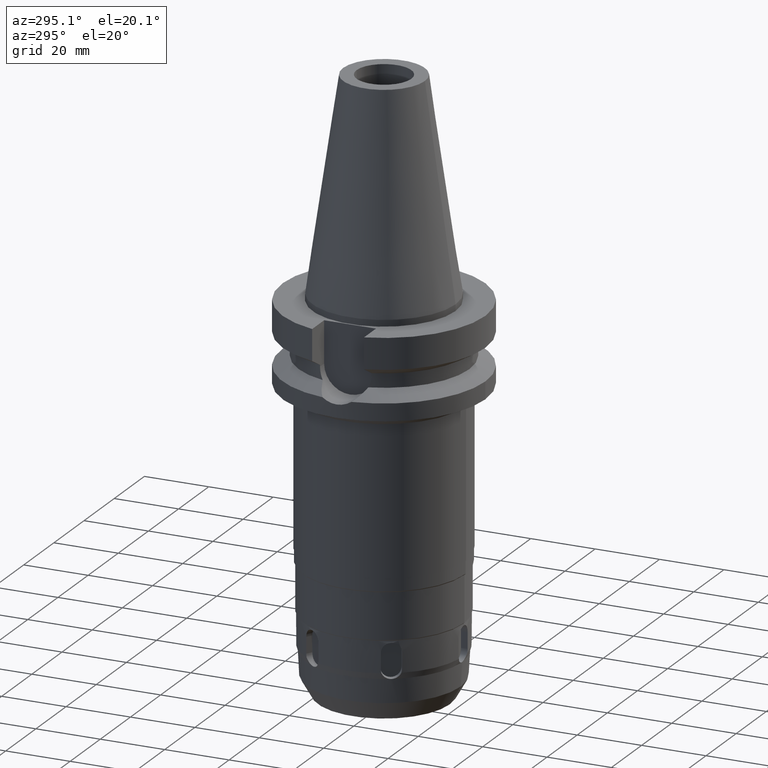
[diagram: clean part render]
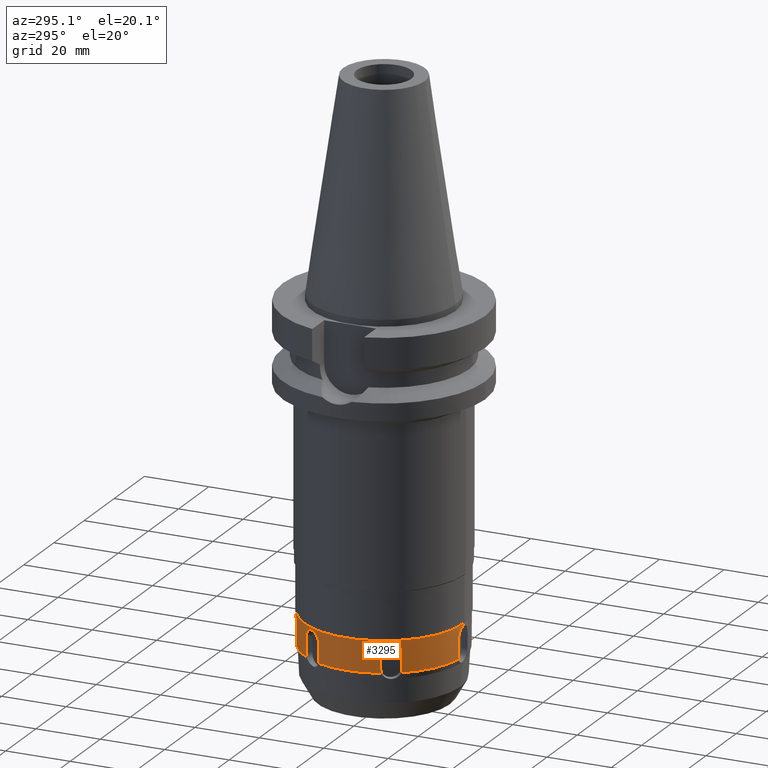
[diagram: same view with one face highlighted and labeled with its STEP entity id]
A machine part, auxiliary view. The second image highlights one B-rep face of the part: STEP entity #3295.
In plain terms, the highlighted cylindrical surface (partial cylindrical patch) has radius 24.75 mm, axis along (0, 0, -1).
Its self-contained STEP definition (entity closure, byte-faithful):
#847=CARTESIAN_POINT('',(0.E0,0.E0,-9.515E1));
#848=DIRECTION('',(0.E0,0.E0,-1.E0));
#849=DIRECTION('',(0.E0,-1.E0,0.E0));
#850=AXIS2_PLACEMENT_3D('',#847,#848,#849);
#855=CARTESIAN_POINT('',(-2.277608692876E1,9.685678304267E0,-9.88E1));
#856=CARTESIAN_POINT('',(-2.277608692876E1,9.685678304267E0,-9.853382772260E1));
#857=CARTESIAN_POINT('',(-2.274941907762E1,9.748761460519E0,-9.802082894395E1));
#858=CARTESIAN_POINT('',(-2.262812374320E1,1.002907153520E1,-9.728290961077E1));
#859=CARTESIAN_POINT('',(-2.242852391882E1,1.047030723910E1,-9.665589055986E1));
#860=CARTESIAN_POINT('',(-2.215625241434E1,1.103738472901E1,-9.617264353959E1));
#861=CARTESIAN_POINT('',(-2.181740233473E1,1.169428801064E1,-9.586838751728E1));
#862=CARTESIAN_POINT('',(-2.156755927603E1,1.214389179977E1,-9.579999868688E1));
#863=CARTESIAN_POINT('',(-2.143412885673E1,1.237500006528E1,-9.579999868688E1));
#868=CARTESIAN_POINT('',(-2.143412885673E1,1.237500006528E1,-9.579999868688E1));
#869=CARTESIAN_POINT('',(-2.130122294131E1,1.260519986340E1,-9.579999868688E1));
#870=CARTESIAN_POINT('',(-2.103766109526E1,1.304497600782E1,-9.586783314976E1));
#871=CARTESIAN_POINT('',(-2.063880906820E1,1.366611594254E1,-9.617065679008E1));
#872=CARTESIAN_POINT('',(-2.028391357781E1,1.418552777123E1,-9.665227049946E1));
#873=CARTESIAN_POINT('',(-2.000075354091E1,1.458028127806E1,-9.727904284593E1));
#874=CARTESIAN_POINT('',(-1.981774368735E1,1.482671932313E1,-9.801794991228E1));
#875=CARTESIAN_POINT('',(-1.977608692876E1,1.488183072697E1,-9.853270033417E1));
#876=CARTESIAN_POINT('',(-1.977608692876E1,1.488183072697E1,-9.88E1));
#881=DIRECTION('',(5.733472432960E-6,-2.907972855023E-6,-9.999999999793E-1));
#882=VECTOR('',#881,5.000000011344E0);
#883=CARTESIAN_POINT('',(-1.977608692876E1,1.488183072697E1,-9.88E1));
#884=LINE('',#883,#882);
#888=CARTESIAN_POINT('',(-1.977605826140E1,1.488181618711E1,-1.038000000112E2));
#889=CARTESIAN_POINT('',(-1.977605826140E1,1.488181618711E1,-1.039258398911E2));
#890=CARTESIAN_POINT('',(-1.978560937937E1,1.486921420628E1,-1.041751526114E2));
#891=CARTESIAN_POINT('',(-1.982809887121E1,1.481254782285E1,-1.045455265340E2));
#892=CARTESIAN_POINT('',(-1.987429749210E1,1.475049062223E1,-1.047830341256E2));
#893=CARTESIAN_POINT('',(-1.990187687196E1,1.471318518270E1,-1.048999982153E2));
#898=CARTESIAN_POINT('',(-2.791106674286E0,2.459215007550E1,-1.048998638002E2));
#899=CARTESIAN_POINT('',(-2.837186924649E0,2.458692026944E1,-1.047828930500E2));
#900=CARTESIAN_POINT('',(-2.913976021288E0,2.457790221677E1,-1.045455924133E2));
#901=CARTESIAN_POINT('',(-2.984316467473E0,2.456943665217E1,-1.041751338510E2));
#902=CARTESIAN_POINT('',(-3.000001634364E0,2.456750845681E1,-1.039258399201E2));
#903=CARTESIAN_POINT('',(-3.000001634364E0,2.456750845681E1,-1.038000000003E2));
#908=DIRECTION('',(3.268727381934E-7,1.148857137365E-7,9.999999999999E-1));
#909=VECTOR('',#908,5.000000000254E0);
#910=CARTESIAN_POINT('',(-3.000001634364E0,2.456750845681E1,-1.038000000003E2));
#911=LINE('',#910,#909);
#915=CARTESIAN_POINT('',(-3.E0,2.456750903124E1,-9.88E1));
#916=CARTESIAN_POINT('',(-3.E0,2.456750903124E1,-9.853380874846E1));
#917=CARTESIAN_POINT('',(-2.932003240861E0,2.457595878012E1,-9.802081148995E1));
#918=CARTESIAN_POINT('',(-2.628812746074E0,2.461104601339E1,-9.728325693414E1));
#919=CARTESIAN_POINT('',(-2.147010880420E0,2.465879573178E1,-9.665623047401E1));
#920=CARTESIAN_POINT('',(-1.520314430071E0,2.470651514563E1,-9.617315736044E1));
#921=CARTESIAN_POINT('',(-7.818449935272E-1,2.474155109349E1,
-9.586852715310E1));
#922=CARTESIAN_POINT('',(-2.671518203909E-1,2.475E1,-9.58E1));
#923=CARTESIAN_POINT('',(-2.878848448951E-14,2.475E1,-9.58E1));
#928=DIRECTION('',(-2.881393994530E-14,9.291712698402E-14,-1.E0));
#929=VECTOR('',#928,6.499999999999E-1);
#930=CARTESIAN_POINT('',(0.E0,-2.475E1,-9.515E1));
#931=LINE('',#930,#929);
#935=CARTESIAN_POINT('',(-1.872906096445E-14,-2.475E1,-9.58E1));
#936=CARTESIAN_POINT('',(-2.661211182714E-1,-2.475E1,-9.58E1));
#937=CARTESIAN_POINT('',(-7.792108686230E-1,-2.474161653453E1,
-9.586800177279E1));
#938=CARTESIAN_POINT('',(-1.516626970290E0,-2.470673891778E1,
-9.617113169059E1));
#939=CARTESIAN_POINT('',(-2.143686309982E0,-2.465909254244E1,
-9.665290382071E1));
#940=CARTESIAN_POINT('',(-2.626803420009E0,-2.461126904518E1,
-9.727959466041E1));
#941=CARTESIAN_POINT('',(-2.931485269642E0,-2.457602382011E1,
-9.801820961084E1));
#942=CARTESIAN_POINT('',(-3.E0,-2.456750903124E1,-9.853279174943E1));
#943=CARTESIAN_POINT('',(-3.E0,-2.456750903124E1,-9.88E1));
#948=DIRECTION('',(-3.501371756136E-7,6.419944411461E-6,-9.999999999793E-1));
#949=VECTOR('',#948,5.000000011346E0);
#950=CARTESIAN_POINT('',(-3.E0,-2.456750903124E1,-9.88E1));
#951=LINE('',#950,#949);
#955=CARTESIAN_POINT('',(-3.000001750686E0,-2.456747693152E1,
-1.038000000112E2));
#956=CARTESIAN_POINT('',(-3.000001750686E0,-2.456747693152E1,
-1.039258398911E2));
#957=CARTESIAN_POINT('',(-2.984312584735E0,-2.456944745172E1,
-1.041751526097E2));
#958=CARTESIAN_POINT('',(-2.913993242253E0,-2.457791124522E1,
-1.045455265275E2));
#959=CARTESIAN_POINT('',(-2.837150838761E0,-2.458689182504E1,
-1.047830341079E2));
#960=CARTESIAN_POINT('',(-2.791053687772E0,-2.459212354906E1,
-1.048999982074E2));
#965=CARTESIAN_POINT('',(-1.990187335022E1,-1.471324433472E1,
-1.048998638088E2));
#966=CARTESIAN_POINT('',(-1.987430408183E1,-1.475053609664E1,
-1.047828930693E2));
#967=CARTESIAN_POINT('',(-1.982809966076E1,-1.481252839776E1,
-1.045455924207E2));
#968=CARTESIAN_POINT('',(-1.978559808641E1,-1.486921216745E1,
-1.041751338529E2));
#969=CARTESIAN_POINT('',(-1.977608562173E1,-1.488183184861E1,
-1.039258399201E2));
#970=CARTESIAN_POINT('',(-1.977608562173E1,-1.488183184861E1,
-1.038000000003E2));
#975=DIRECTION('',(-2.614050913376E-7,2.243283471757E-7,9.999999999999E-1));
#976=VECTOR('',#975,5.000000000252E0);
#977=CARTESIAN_POINT('',(-1.977608562173E1,-1.488183184861E1,
-1.038000000003E2));
#978=LINE('',#977,#976);
#982=CARTESIAN_POINT('',(-1.977608692876E1,-1.488183072697E1,-9.88E1));
#983=CARTESIAN_POINT('',(-1.977608692876E1,-1.488183072697E1,
-9.853371590189E1));
#984=CARTESIAN_POINT('',(-1.981742848102E1,-1.482713524739E1,
-9.802054551881E1));
#985=CARTESIAN_POINT('',(-1.999956258466E1,-1.458190068289E1,
-9.728267917724E1));
#986=CARTESIAN_POINT('',(-2.028201442947E1,-1.418823011945E1,
-9.665555863097E1));
#987=CARTESIAN_POINT('',(-2.063679879475E1,-1.366915663976E1,
-9.617265345094E1));
#988=CARTESIAN_POINT('',(-2.103630779103E1,-1.304719127148E1,
-9.586834993240E1));
#989=CARTESIAN_POINT('',(-2.130071547317E1,-1.260607882399E1,
-9.579999868698E1));
#990=CARTESIAN_POINT('',(-2.143412885672E1,-1.237500006527E1,
-9.579999868698E1));
#995=CARTESIAN_POINT('',(-2.143412885672E1,-1.237500006527E1,
-9.579999868698E1));
#996=CARTESIAN_POINT('',(-2.156703260173E1,-1.214480402640E1,
-9.579999868698E1));
#997=CARTESIAN_POINT('',(-2.181611370865E1,-1.169665343156E1,
-9.586785197720E1));
#998=CARTESIAN_POINT('',(-2.215456021555E1,-1.104077437160E1,
-9.617056742137E1));
#999=CARTESIAN_POINT('',(-2.242708343099E1,-1.047341041242E1,
-9.665248470796E1));
#1000=CARTESIAN_POINT('',(-2.262728186928E1,-1.003099202884E1,
-9.727911987485E1));
#1001=CARTESIAN_POINT('',(-2.274920821579E1,-9.749262117547E0,
-9.801812346704E1));
#1002=CARTESIAN_POINT('',(-2.277608692876E1,-9.685678304267E0,
-9.853276845584E1));
#1003=CARTESIAN_POINT('',(-2.277608692876E1,-9.685678304267E0,-9.88E1));
#1008=DIRECTION('',(5.385114631768E-6,3.511346285939E-6,-9.999999999793E-1));
#1009=VECTOR('',#1008,5.000000011344E0);
#1010=CARTESIAN_POINT('',(-2.277608692876E1,-9.685678304267E0,-9.88E1));
#1011=LINE('',#1010,#1009);
#1015=CARTESIAN_POINT('',(-2.277606000318E1,-9.685660747536E0,
-1.038000000112E2));
#1016=CARTESIAN_POINT('',(-2.277606000318E1,-9.685660747536E0,
-1.039258398911E2));
#1017=CARTESIAN_POINT('',(-2.276992192664E1,-9.700233248745E0,
-1.041751526114E2));
#1018=CARTESIAN_POINT('',(-2.274209214496E1,-9.765363419812E0,
-1.045455265341E2));
#1019=CARTESIAN_POINT('',(-2.271144834320E1,-9.836401199389E0,
-1.047830341255E2));
#1020=CARTESIAN_POINT('',(-2.269293057480E1,-9.878938362719E0,
-1.048999982151E2));
#1025=CARTESIAN_POINT('',(-2.269298004122E1,9.878905736477E0,
-1.048998638078E2));
#1026=CARTESIAN_POINT('',(-2.271149102015E1,9.836384168838E0,
-1.047828930683E2));
#1027=CARTESIAN_POINT('',(-2.274207571707E1,9.765373816221E0,
-1.045455924212E2));
#1028=CARTESIAN_POINT('',(-2.276991451449E1,9.700224488138E0,
-1.041751338528E2));
#1029=CARTESIAN_POINT('',(-2.277608724662E1,9.685676611529E0,
-1.039258399201E2));
#1030=CARTESIAN_POINT('',(-2.277608724662E1,9.685676611529E0,
-1.038000000003E2));
#1035=DIRECTION('',(6.357150183723E-8,3.385476261826E-7,9.999999999999E-1));
#1036=VECTOR('',#1035,5.000000000252E0);
#1037=CARTESIAN_POINT('',(-2.277608724662E1,9.685676611529E0,
-1.038000000003E2));
#1038=LINE('',#1037,#1036);
#1076=CARTESIAN_POINT('',(-2.269298004122E1,9.878905736477E0,
-1.048998638078E2));
#1081=CARTESIAN_POINT('',(0.E0,0.E0,-1.049E2));
#1082=DIRECTION('',(0.E0,0.E0,1.E0));
#1083=DIRECTION('',(-9.168859240019E-1,3.991493484489E-1,0.E0));
#1084=AXIS2_PLACEMENT_3D('',#1081,#1082,#1083);
#1128=CARTESIAN_POINT('',(-1.990187335022E1,-1.471324433472E1,
-1.048998638088E2));
#1133=CARTESIAN_POINT('',(0.E0,0.E0,-1.049E2));
#1134=DIRECTION('',(0.E0,0.E0,1.E0));
#1135=DIRECTION('',(-8.041164376617E-1,-5.944718283336E-1,0.E0));
#1136=AXIS2_PLACEMENT_3D('',#1133,#1134,#1135);
#1308=DIRECTION('',(-2.738042545496E-14,-8.745141363202E-14,-1.E0));
#1309=VECTOR('',#1308,6.499999999999E-1);
#1310=CARTESIAN_POINT('',(-1.099120794379E-14,2.475E1,-9.515E1));
#1311=LINE('',#1310,#1309);
#1824=CARTESIAN_POINT('',(-1.990187687196E1,1.471318518270E1,
-1.048999982153E2));
#1849=CARTESIAN_POINT('',(-2.791106674286E0,2.459215007550E1,
-1.048998638002E2));
#1854=CARTESIAN_POINT('',(0.E0,0.E0,-1.049E2));
#1855=DIRECTION('',(0.E0,0.E0,1.E0));
#1856=DIRECTION('',(-1.127694839251E-1,9.936211770566E-1,0.E0));
#1857=AXIS2_PLACEMENT_3D('',#1854,#1855,#1856);
#2360=VERTEX_POINT('',#1076);
#2361=VERTEX_POINT('',#1824);
#2362=VERTEX_POINT('',#888);
#2369=CARTESIAN_POINT('',(-2.277608724662E1,9.685676611529E0,
-1.038000000003E2));
#2370=VERTEX_POINT('',#2369);
#2386=VERTEX_POINT('',#1128);
#2387=CARTESIAN_POINT('',(-2.791044649062E0,-2.459212414100E1,-1.049E2));
#2388=VERTEX_POINT('',#2387);
#2389=CARTESIAN_POINT('',(-2.269292658553E1,-9.878946451076E0,-1.049E2));
#2390=VERTEX_POINT('',#2389);
#2391=VERTEX_POINT('',#1849);
#2403=VERTEX_POINT('',#955);
#2412=VERTEX_POINT('',#868);
#2413=VERTEX_POINT('',#876);
#2414=VERTEX_POINT('',#855);
#2415=VERTEX_POINT('',#903);
#2416=CARTESIAN_POINT('',(-3.E0,2.456750903124E1,-9.88E1));
#2417=VERTEX_POINT('',#2416);
#2418=VERTEX_POINT('',#923);
#2419=CARTESIAN_POINT('',(-1.099120794379E-14,2.475E1,-9.515E1));
#2420=VERTEX_POINT('',#2419);
#2421=CARTESIAN_POINT('',(0.E0,-2.475E1,-9.515E1));
#2422=VERTEX_POINT('',#2421);
#2423=CARTESIAN_POINT('',(-1.872906096445E-14,-2.475E1,-9.58E1));
#2424=VERTEX_POINT('',#2423);
#2425=VERTEX_POINT('',#943);
#2426=VERTEX_POINT('',#970);
#2427=CARTESIAN_POINT('',(-1.977608692876E1,-1.488183072697E1,-9.88E1));
#2428=VERTEX_POINT('',#2427);
#2429=VERTEX_POINT('',#995);
#2430=VERTEX_POINT('',#1003);
#2431=CARTESIAN_POINT('',(-2.277606000318E1,-9.685660747536E0,
-1.038000000112E2));
#2432=VERTEX_POINT('',#2431);
#3241=CARTESIAN_POINT('',(0.E0,2.139090564071E-14,7.467E1));
#3242=DIRECTION('',(0.E0,0.E0,-1.E0));
#3243=DIRECTION('',(0.E0,-1.E0,0.E0));
#3244=AXIS2_PLACEMENT_3D('',#3241,#3242,#3243);
#3245=CYLINDRICAL_SURFACE('',#3244,2.475E1);
#3247=ORIENTED_EDGE('',*,*,#3246,.T.);
#3249=ORIENTED_EDGE('',*,*,#3248,.T.);
#3251=ORIENTED_EDGE('',*,*,#3250,.T.);
#3253=ORIENTED_EDGE('',*,*,#3252,.T.);
#3255=ORIENTED_EDGE('',*,*,#3254,.F.);
#3257=ORIENTED_EDGE('',*,*,#3256,.T.);
#3259=ORIENTED_EDGE('',*,*,#3258,.T.);
#3261=ORIENTED_EDGE('',*,*,#3260,.T.);
#3263=ORIENTED_EDGE('',*,*,#3262,.F.);
#3264=ORIENTED_EDGE('',*,*,#3236,.F.);
#3266=ORIENTED_EDGE('',*,*,#3265,.T.);
#3268=ORIENTED_EDGE('',*,*,#3267,.T.);
#3270=ORIENTED_EDGE('',*,*,#3269,.T.);
#3272=ORIENTED_EDGE('',*,*,#3271,.T.);
#3274=ORIENTED_EDGE('',*,*,#3273,.F.);
#3276=ORIENTED_EDGE('',*,*,#3275,.T.);
#3278=ORIENTED_EDGE('',*,*,#3277,.T.);
#3280=ORIENTED_EDGE('',*,*,#3279,.T.);
#3282=ORIENTED_EDGE('',*,*,#3281,.T.);
#3284=ORIENTED_EDGE('',*,*,#3283,.T.);
#3286=ORIENTED_EDGE('',*,*,#3285,.T.);
#3288=ORIENTED_EDGE('',*,*,#3287,.F.);
#3290=ORIENTED_EDGE('',*,*,#3289,.T.);
#3292=ORIENTED_EDGE('',*,*,#3291,.T.);
#3293=EDGE_LOOP('',(#3247,#3249,#3251,#3253,#3255,#3257,#3259,#3261,#3263,#3264,
#3266,#3268,#3270,#3272,#3274,#3276,#3278,#3280,#3282,#3284,#3286,#3288,#3290,
#3292));
#3294=FACE_OUTER_BOUND('',#3293,.F.);
#851=CIRCLE('',#850,2.475E1);
#864=B_SPLINE_CURVE_WITH_KNOTS('',3,(#855,#856,#857,#858,#859,#860,#861,#862,
#863),.UNSPECIFIED.,.F.,.F.,(4,1,1,1,1,1,4),(0.E0,1.666666666667E-1,
3.333333333333E-1,5.E-1,6.666666666667E-1,8.333333333333E-1,1.E0),
.UNSPECIFIED.);
#877=B_SPLINE_CURVE_WITH_KNOTS('',3,(#868,#869,#870,#871,#872,#873,#874,#875,
#876),.UNSPECIFIED.,.F.,.F.,(4,1,1,1,1,1,4),(0.E0,1.666666666667E-1,
3.333333333333E-1,5.E-1,6.666666666667E-1,8.333333333333E-1,1.E0),
.UNSPECIFIED.);
#894=B_SPLINE_CURVE_WITH_KNOTS('',3,(#888,#889,#890,#891,#892,#893),
.UNSPECIFIED.,.F.,.F.,(4,1,1,4),(0.E0,3.333333333333E-1,6.666666666667E-1,1.E0),
.UNSPECIFIED.);
#904=B_SPLINE_CURVE_WITH_KNOTS('',3,(#898,#899,#900,#901,#902,#903),
.UNSPECIFIED.,.F.,.F.,(4,1,1,4),(0.E0,3.333333333333E-1,6.666666666667E-1,1.E0),
.UNSPECIFIED.);
#924=B_SPLINE_CURVE_WITH_KNOTS('',3,(#915,#916,#917,#918,#919,#920,#921,#922,
#923),.UNSPECIFIED.,.F.,.F.,(4,1,1,1,1,1,4),(0.E0,1.666666666667E-1,
3.333333333333E-1,5.E-1,6.666666666667E-1,8.333333333333E-1,1.E0),
.UNSPECIFIED.);
#944=B_SPLINE_CURVE_WITH_KNOTS('',3,(#935,#936,#937,#938,#939,#940,#941,#942,
#943),.UNSPECIFIED.,.F.,.F.,(4,1,1,1,1,1,4),(0.E0,1.666666666667E-1,
3.333333333333E-1,5.E-1,6.666666666667E-1,8.333333333333E-1,1.E0),
.UNSPECIFIED.);
#961=B_SPLINE_CURVE_WITH_KNOTS('',3,(#955,#956,#957,#958,#959,#960),
.UNSPECIFIED.,.F.,.F.,(4,1,1,4),(0.E0,3.333333333333E-1,6.666666666667E-1,1.E0),
.UNSPECIFIED.);
#971=B_SPLINE_CURVE_WITH_KNOTS('',3,(#965,#966,#967,#968,#969,#970),
.UNSPECIFIED.,.F.,.F.,(4,1,1,4),(0.E0,3.333333333333E-1,6.666666666667E-1,1.E0),
.UNSPECIFIED.);
#991=B_SPLINE_CURVE_WITH_KNOTS('',3,(#982,#983,#984,#985,#986,#987,#988,#989,
#990),.UNSPECIFIED.,.F.,.F.,(4,1,1,1,1,1,4),(0.E0,1.666666666667E-1,
3.333333333333E-1,5.E-1,6.666666666667E-1,8.333333333333E-1,1.E0),
.UNSPECIFIED.);
#1004=B_SPLINE_CURVE_WITH_KNOTS('',3,(#995,#996,#997,#998,#999,#1000,#1001,
#1002,#1003),.UNSPECIFIED.,.F.,.F.,(4,1,1,1,1,1,4),(0.E0,1.666666666667E-1,
3.333333333333E-1,5.E-1,6.666666666667E-1,8.333333333333E-1,1.E0),
.UNSPECIFIED.);
#1021=B_SPLINE_CURVE_WITH_KNOTS('',3,(#1015,#1016,#1017,#1018,#1019,#1020),
.UNSPECIFIED.,.F.,.F.,(4,1,1,4),(0.E0,3.333333333333E-1,6.666666666667E-1,1.E0),
.UNSPECIFIED.);
#1031=B_SPLINE_CURVE_WITH_KNOTS('',3,(#1025,#1026,#1027,#1028,#1029,#1030),
.UNSPECIFIED.,.F.,.F.,(4,1,1,4),(0.E0,3.333333333333E-1,6.666666666667E-1,1.E0),
.UNSPECIFIED.);
#1085=CIRCLE('',#1084,2.474999999999E1);
#1137=CIRCLE('',#1136,2.474999999999E1);
#1858=CIRCLE('',#1857,2.474999999999E1);
#3236=EDGE_CURVE('',#2422,#2420,#851,.T.);
#3246=EDGE_CURVE('',#2414,#2412,#864,.T.);
#3248=EDGE_CURVE('',#2412,#2413,#877,.T.);
#3250=EDGE_CURVE('',#2413,#2362,#884,.T.);
#3252=EDGE_CURVE('',#2362,#2361,#894,.T.);
#3254=EDGE_CURVE('',#2391,#2361,#1858,.T.);
#3256=EDGE_CURVE('',#2391,#2415,#904,.T.);
#3258=EDGE_CURVE('',#2415,#2417,#911,.T.);
#3260=EDGE_CURVE('',#2417,#2418,#924,.T.);
#3262=EDGE_CURVE('',#2420,#2418,#1311,.T.);
#3265=EDGE_CURVE('',#2422,#2424,#931,.T.);
#3267=EDGE_CURVE('',#2424,#2425,#944,.T.);
#3269=EDGE_CURVE('',#2425,#2403,#951,.T.);
#3271=EDGE_CURVE('',#2403,#2388,#961,.T.);
#3273=EDGE_CURVE('',#2386,#2388,#1137,.T.);
#3275=EDGE_CURVE('',#2386,#2426,#971,.T.);
#3277=EDGE_CURVE('',#2426,#2428,#978,.T.);
#3279=EDGE_CURVE('',#2428,#2429,#991,.T.);
#3281=EDGE_CURVE('',#2429,#2430,#1004,.T.);
#3283=EDGE_CURVE('',#2430,#2432,#1011,.T.);
#3285=EDGE_CURVE('',#2432,#2390,#1021,.T.);
#3287=EDGE_CURVE('',#2360,#2390,#1085,.T.);
#3289=EDGE_CURVE('',#2360,#2370,#1031,.T.);
#3291=EDGE_CURVE('',#2370,#2414,#1038,.T.);
#3295=ADVANCED_FACE('',(#3294),#3245,.T.);